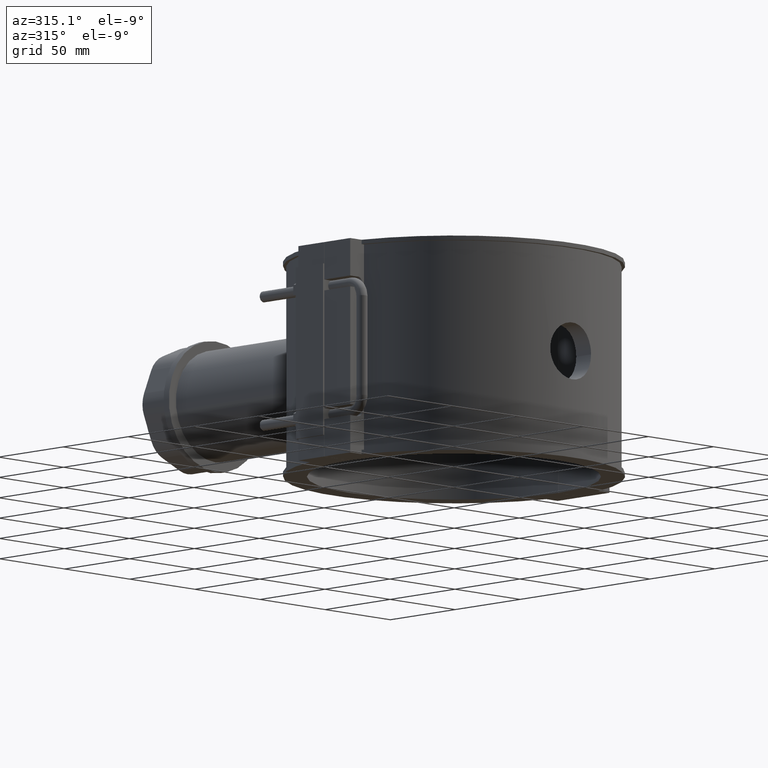
[diagram: clean part render]
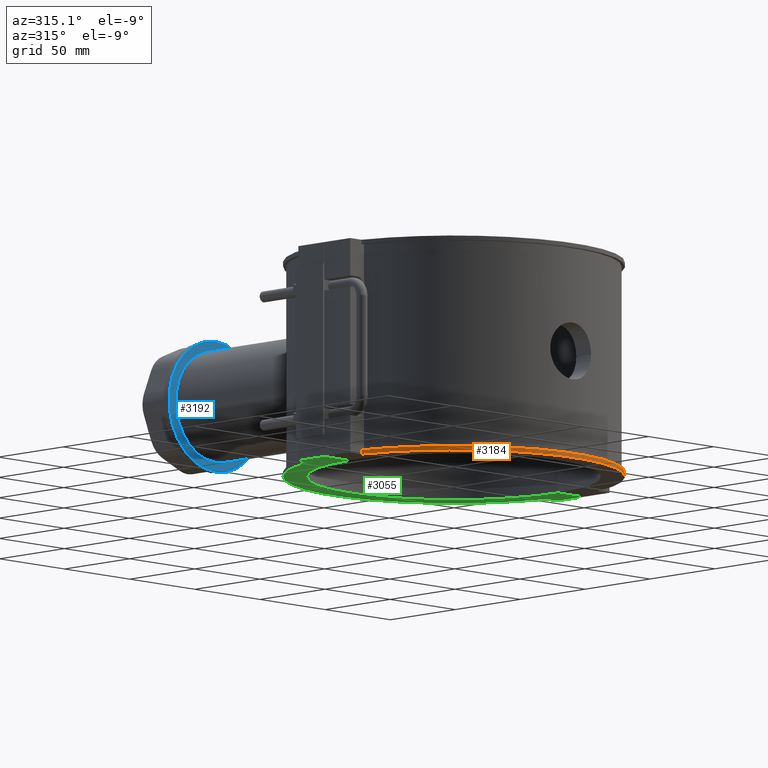
[diagram: same view with three faces highlighted in distinct colors, each labeled with its STEP entity id]
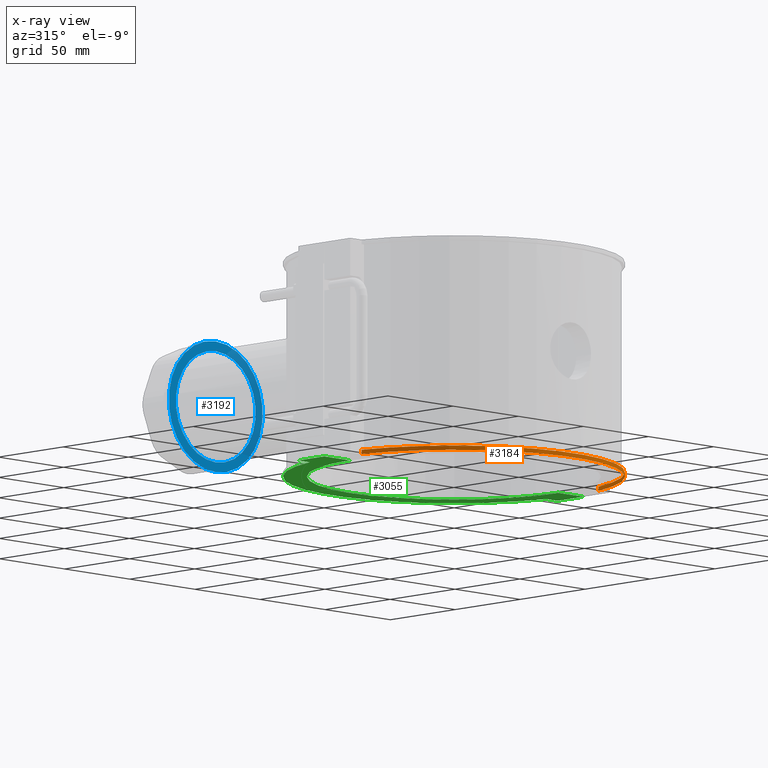
[diagram: x-ray of the same camera — body ghosted, the three highlighted faces saturated]
A machine part, auxiliary view with three faces highlighted in distinct colors.
The next image is the same camera in x-ray (body ghosted, the three faces saturated) — at least one of them is partly hidden behind the body in this view.
Their STEP definitions:

[orange] entity #3184 — the highlighted cylindrical surface (partial cylindrical patch) has radius 93.024 mm, axis along (0, 0, -1).
#251=LINE('',#5905,#534);
#261=LINE('',#5999,#544);
#534=VECTOR('',#4113,2.36);
#544=VECTOR('',#4145,2.36);
#786=CIRCLE('',#3263,93.024);
#846=CIRCLE('',#3439,93.024);
#1016=FACE_OUTER_BOUND('',#1244,.T.);
#1244=EDGE_LOOP('',(#2782,#2783,#2784,#2785));
#1417=VERTEX_POINT('',#4624);
#1418=VERTEX_POINT('',#4626);
#1581=VERTEX_POINT('',#5904);
#1588=VERTEX_POINT('',#5998);
#1721=EDGE_CURVE('',#1418,#1417,#786,.T.);
#1974=EDGE_CURVE('',#1581,#1417,#251,.T.);
#1989=EDGE_CURVE('',#1418,#1588,#261,.T.);
#1993=EDGE_CURVE('',#1581,#1588,#846,.T.);
#2782=ORIENTED_EDGE('',*,*,#1721,.T.);
#2783=ORIENTED_EDGE('',*,*,#1974,.F.);
#2784=ORIENTED_EDGE('',*,*,#1993,.T.);
#2785=ORIENTED_EDGE('',*,*,#1989,.F.);
#3035=CYLINDRICAL_SURFACE('',#3440,93.024);
#3184=ADVANCED_FACE('',(#1016),#3035,.T.);
#3263=AXIS2_PLACEMENT_3D('',#4627,#3630,#3631);
#3439=AXIS2_PLACEMENT_3D('',#6006,#4153,#4154);
#3440=AXIS2_PLACEMENT_3D('',#6007,#4155,#4156);
#3630=DIRECTION('center_axis',(0.,0.,1.));
#3631=DIRECTION('ref_axis',(-0.976614427290077,-0.21499828001376,0.));
#4113=DIRECTION('',(0.,0.,-1.));
#4145=DIRECTION('',(0.,0.,1.));
#4153=DIRECTION('center_axis',(0.,0.,-1.));
#4154=DIRECTION('ref_axis',(-0.976614427290077,-0.21499828001376,0.));
#4155=DIRECTION('center_axis',(0.,0.,-1.));
#4156=DIRECTION('ref_axis',(-0.976614427290077,-0.21499828001376,0.));
#4624=CARTESIAN_POINT('',(90.8485804842321,-20.,-59.));
#4626=CARTESIAN_POINT('',(-90.8485804842321,-20.,-59.));
#4627=CARTESIAN_POINT('Origin',(0.,0.,-59.));
#5904=CARTESIAN_POINT('',(90.8485804842321,-20.,-56.64));
#5905=CARTESIAN_POINT('',(90.8485804842321,-20.,-59.));
#5998=CARTESIAN_POINT('',(-90.8485804842321,-20.,-56.64));
#5999=CARTESIAN_POINT('',(-90.8485804842321,-20.,-59.));
#6006=CARTESIAN_POINT('Origin',(0.,0.,-56.64));
#6007=CARTESIAN_POINT('Origin',(0.,0.,-59.));

[blue] entity #3192 — the highlighted planar face has unit normal (0, -1, -0).
#697=PLANE('',#3451);
#767=FACE_BOUND('',#1257,.T.);
#849=CIRCLE('',#3449,36.);
#851=CIRCLE('',#3452,30.6);
#1024=FACE_OUTER_BOUND('',#1256,.T.);
#1256=EDGE_LOOP('',(#2813));
#1257=EDGE_LOOP('',(#2814));
#1600=VERTEX_POINT('',#6266);
#1602=VERTEX_POINT('',#6271);
#2006=EDGE_CURVE('',#1600,#1600,#849,.T.);
#2008=EDGE_CURVE('',#1602,#1602,#851,.T.);
#2813=ORIENTED_EDGE('',*,*,#2006,.F.);
#2814=ORIENTED_EDGE('',*,*,#2008,.T.);
#3192=ADVANCED_FACE('',(#1024,#767),#697,.T.);
#3449=AXIS2_PLACEMENT_3D('',#6267,#4177,#4178);
#3451=AXIS2_PLACEMENT_3D('',#6270,#4181,#4182);
#3452=AXIS2_PLACEMENT_3D('',#6272,#4183,#4184);
#4177=DIRECTION('center_axis',(0.,1.,3.06161699786838E-16));
#4178=DIRECTION('ref_axis',(1.,0.,0.));
#4181=DIRECTION('center_axis',(0.,-1.,-3.06161699786838E-16));
#4182=DIRECTION('ref_axis',(0.,0.,-1.));
#4183=DIRECTION('center_axis',(0.,1.,3.06161699786838E-16));
#4184=DIRECTION('ref_axis',(1.,0.,0.));
#6266=CARTESIAN_POINT('',(0.,183.5,36.));
#6267=CARTESIAN_POINT('Origin',(0.,183.5,3.16877359279378E-14));
#6270=CARTESIAN_POINT('Origin',(0.,183.5,36.));
#6271=CARTESIAN_POINT('',(0.,183.5,30.6000000000001));
#6272=CARTESIAN_POINT('Origin',(0.,183.5,3.16877359279378E-14));

[green] entity #3055 — the highlighted planar face has unit normal (0, 0, 1).
#48=LINE('',#4517,#331);
#49=LINE('',#4521,#332);
#50=LINE('',#4523,#333);
#51=LINE('',#4525,#334);
#52=LINE('',#4529,#335);
#53=LINE('',#4530,#336);
#331=VECTOR('',#3552,19.5000156250015);
#332=VECTOR('',#3555,19.5000156250016);
#333=VECTOR('',#3556,19.95);
#334=VECTOR('',#3557,8.6514195157679);
#335=VECTOR('',#3560,8.6514195157679);
#336=VECTOR('',#3561,19.95);
#610=PLANE('',#3246);
#778=CIRCLE('',#3247,80.);
#779=CIRCLE('',#3248,93.024);
#887=FACE_OUTER_BOUND('',#1075,.T.);
#1075=EDGE_LOOP('',(#2112,#2113,#2114,#2115,#2116,#2117,#2118,#2119));
#1369=VERTEX_POINT('',#4515);
#1370=VERTEX_POINT('',#4516);
#1371=VERTEX_POINT('',#4518);
#1372=VERTEX_POINT('',#4520);
#1373=VERTEX_POINT('',#4522);
#1374=VERTEX_POINT('',#4524);
#1375=VERTEX_POINT('',#4526);
#1376=VERTEX_POINT('',#4528);
#1667=EDGE_CURVE('',#1369,#1370,#48,.T.);
#1668=EDGE_CURVE('',#1370,#1371,#778,.T.);
#1669=EDGE_CURVE('',#1371,#1372,#49,.T.);
#1670=EDGE_CURVE('',#1372,#1373,#50,.T.);
#1671=EDGE_CURVE('',#1373,#1374,#51,.T.);
#1672=EDGE_CURVE('',#1375,#1374,#779,.T.);
#1673=EDGE_CURVE('',#1375,#1376,#52,.T.);
#1674=EDGE_CURVE('',#1376,#1369,#53,.T.);
#2112=ORIENTED_EDGE('',*,*,#1667,.T.);
#2113=ORIENTED_EDGE('',*,*,#1668,.T.);
#2114=ORIENTED_EDGE('',*,*,#1669,.T.);
#2115=ORIENTED_EDGE('',*,*,#1670,.T.);
#2116=ORIENTED_EDGE('',*,*,#1671,.T.);
#2117=ORIENTED_EDGE('',*,*,#1672,.F.);
#2118=ORIENTED_EDGE('',*,*,#1673,.T.);
#2119=ORIENTED_EDGE('',*,*,#1674,.T.);
#3055=ADVANCED_FACE('',(#887),#610,.F.);
#3246=AXIS2_PLACEMENT_3D('',#4514,#3550,#3551);
#3247=AXIS2_PLACEMENT_3D('',#4519,#3553,#3554);
#3248=AXIS2_PLACEMENT_3D('',#4527,#3558,#3559);
#3550=DIRECTION('center_axis',(0.,0.,1.));
#3551=DIRECTION('ref_axis',(1.,0.,0.));
#3552=DIRECTION('',(-1.,1.74344067937368E-19,0.));
#3553=DIRECTION('center_axis',(0.,0.,1.));
#3554=DIRECTION('ref_axis',(-1.,0.,0.));
#3555=DIRECTION('',(-1.,1.74344067937368E-19,0.));
#3556=DIRECTION('',(0.,1.,0.));
#3557=DIRECTION('',(1.,0.,0.));
#3558=DIRECTION('center_axis',(0.,0.,1.));
#3559=DIRECTION('ref_axis',(0.976614427290077,0.21499828001376,0.));
#3560=DIRECTION('',(1.,0.,0.));
#3561=DIRECTION('',(0.,-1.,0.));
#4514=CARTESIAN_POINT('Origin',(-95.292017078786,4.30235360662464E-16,-59.));
#4515=CARTESIAN_POINT('',(99.5,0.0500000000000078,-59.));
#4516=CARTESIAN_POINT('',(79.9999843749985,0.0500000000000078,-59.));
#4517=CARTESIAN_POINT('',(2.10399146060699,0.0500000000000078,-59.));
#4518=CARTESIAN_POINT('',(-79.9999843749985,0.0500000000000078,-59.));
#4519=CARTESIAN_POINT('Origin',(0.,0.,-59.));
#4520=CARTESIAN_POINT('',(-99.5,0.0500000000000078,-59.));
#4521=CARTESIAN_POINT('',(2.10399146060699,0.0500000000000078,-59.));
#4522=CARTESIAN_POINT('',(-99.5,20.,-59.));
#4523=CARTESIAN_POINT('',(-99.5,20.,-59.));
#4524=CARTESIAN_POINT('',(-90.8485804842321,20.,-59.));
#4525=CARTESIAN_POINT('',(-88.9799977523039,20.,-59.));
#4526=CARTESIAN_POINT('',(90.8485804842321,20.,-59.));
#4527=CARTESIAN_POINT('Origin',(0.,0.,-59.));
#4528=CARTESIAN_POINT('',(99.5,20.,-59.));
#4529=CARTESIAN_POINT('',(99.5,20.,-59.));
#4530=CARTESIAN_POINT('',(99.5,-20.,-59.));